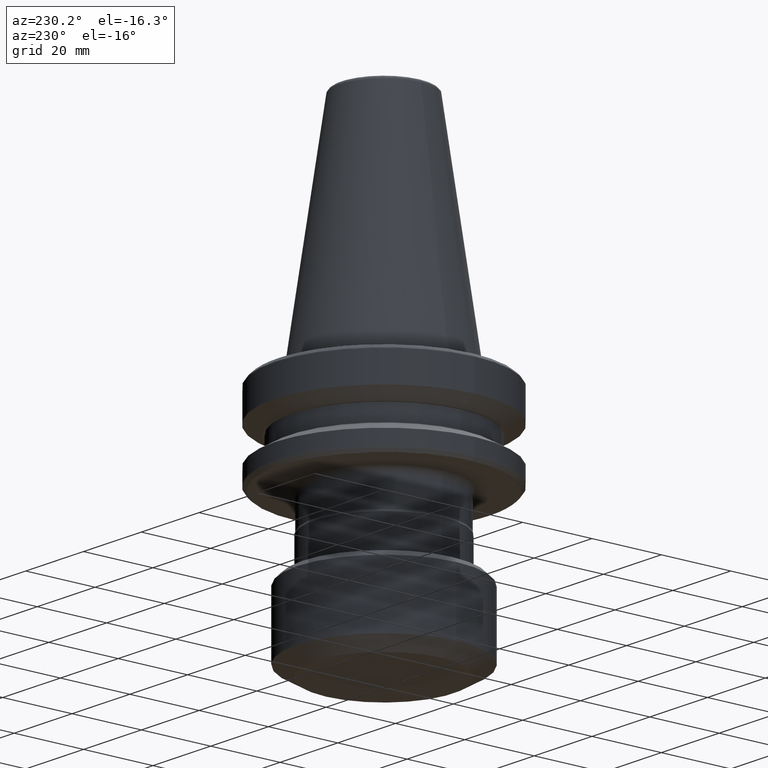
[diagram: clean part render]
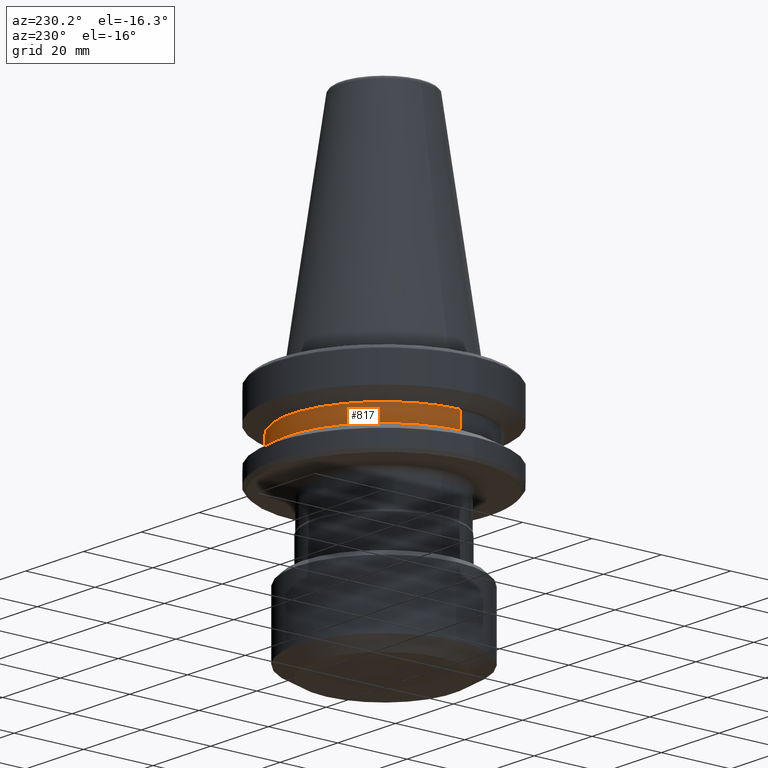
[diagram: same view with one face highlighted and labeled with its STEP entity id]
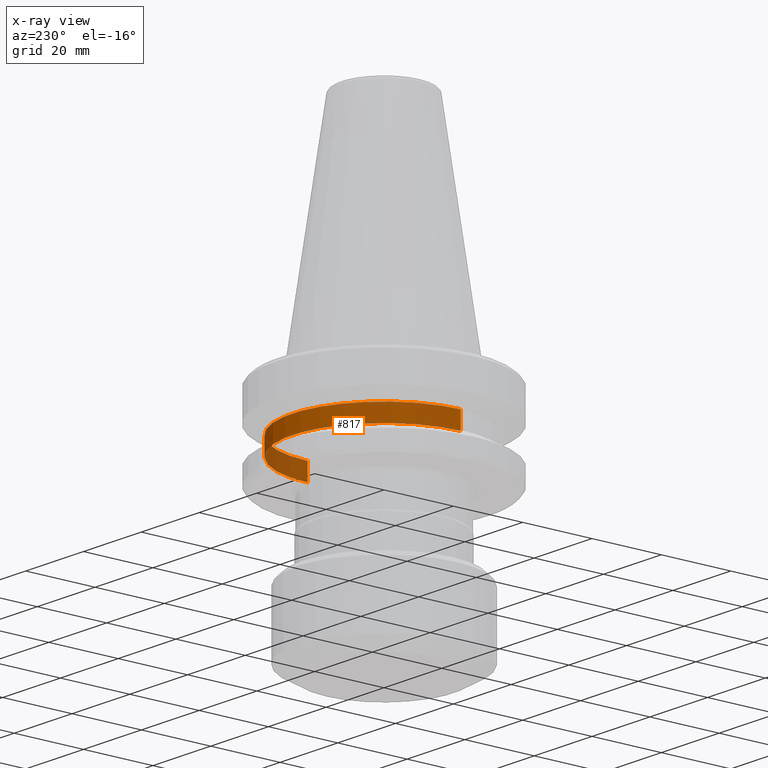
[diagram: x-ray of the same camera — body ghosted, the highlighted face saturated]
A machine part, auxiliary view. The second image highlights one B-rep face of the part: STEP entity #817.
The next image is the same camera in x-ray: the body ghosted, the highlighted face saturated — about 17% of this face is hidden behind the body in this view.
In plain terms, the highlighted cylindrical surface (partial cylindrical patch) has radius 26.5 mm, axis along (-0, -0, 1).
Its self-contained STEP definition (entity closure, byte-faithful):
#12 = DIRECTION ( 'NONE',  ( 1.000000000000000000, 0.0000000000000000000, 0.0000000000000000000 ) ) ;
#30 = EDGE_CURVE ( 'NONE', #1374, #415, #67, .T. ) ;
#66 = EDGE_CURVE ( 'NONE', #415, #366, #212, .T. ) ;
#67 = CIRCLE ( 'NONE', #280, 26.50000000000000000 ) ;
#68 = FACE_OUTER_BOUND ( 'NONE', #1132, .T. ) ;
#93 = DIRECTION ( 'NONE',  ( -0.0000000000000000000, -0.0000000000000000000, 1.000000000000000000 ) ) ;
#105 = CARTESIAN_POINT ( 'NONE',  ( 0.0000000000000000000, 0.0000000000000000000, -19.10000000000000500 ) ) ;
#112 = ORIENTED_EDGE ( 'NONE', *, *, #261, .F. ) ;
#122 = VECTOR ( 'NONE', #537, 1000.000000000000000 ) ;
#212 = LINE ( 'NONE', #228, #1296 ) ;
#221 = VERTEX_POINT ( 'NONE', #510 ) ;
#223 = EDGE_CURVE ( 'NONE', #1374, #221, #1403, .T. ) ;
#228 = CARTESIAN_POINT ( 'NONE',  ( -26.50000000000000000, 3.245314017740485800E-015, 69.75694866325665100 ) ) ;
#261 = EDGE_CURVE ( 'NONE', #221, #366, #1058, .T. ) ;
#280 = AXIS2_PLACEMENT_3D ( 'NONE', #105, #1047, #12 ) ;
#366 = VERTEX_POINT ( 'NONE', #769 ) ;
#415 = VERTEX_POINT ( 'NONE', #858 ) ;
#510 = CARTESIAN_POINT ( 'NONE',  ( 26.50000000000000000, 0.0000000000000000000, -14.10000000000000100 ) ) ;
#533 = CARTESIAN_POINT ( 'NONE',  ( 26.50000000000000000, 0.0000000000000000000, 69.75694866325665100 ) ) ;
#537 = DIRECTION ( 'NONE',  ( -0.0000000000000000000, -0.0000000000000000000, 1.000000000000000000 ) ) ;
#608 = CARTESIAN_POINT ( 'NONE',  ( 0.0000000000000000000, 0.0000000000000000000, -14.10000000000000100 ) ) ;
#611 = DIRECTION ( 'NONE',  ( -0.0000000000000000000, -0.0000000000000000000, 1.000000000000000000 ) ) ;
#614 = DIRECTION ( 'NONE',  ( 1.000000000000000000, 0.0000000000000000000, 0.0000000000000000000 ) ) ;
#717 = ORIENTED_EDGE ( 'NONE', *, *, #66, .T. ) ;
#769 = CARTESIAN_POINT ( 'NONE',  ( -26.50000000000000000, 3.245314017740485800E-015, -14.10000000000000100 ) ) ;
#817 = ADVANCED_FACE ( 'NONE', ( #68 ), #948, .T. ) ;
#858 = CARTESIAN_POINT ( 'NONE',  ( -26.50000000000000000, 3.245314017740485800E-015, -19.10000000000000500 ) ) ;
#948 = CYLINDRICAL_SURFACE ( 'NONE', #1033, 26.50000000000000000 ) ;
#1033 = AXIS2_PLACEMENT_3D ( 'NONE', #1386, #1117, #1365 ) ;
#1042 = ORIENTED_EDGE ( 'NONE', *, *, #223, .F. ) ;
#1047 = DIRECTION ( 'NONE',  ( -0.0000000000000000000, -0.0000000000000000000, 1.000000000000000000 ) ) ;
#1056 = ORIENTED_EDGE ( 'NONE', *, *, #30, .T. ) ;
#1058 = CIRCLE ( 'NONE', #1418, 26.50000000000000000 ) ;
#1117 = DIRECTION ( 'NONE',  ( -0.0000000000000000000, -0.0000000000000000000, 1.000000000000000000 ) ) ;
#1132 = EDGE_LOOP ( 'NONE', ( #1056, #717, #112, #1042 ) ) ;
#1296 = VECTOR ( 'NONE', #93, 1000.000000000000000 ) ;
#1362 = CARTESIAN_POINT ( 'NONE',  ( 26.50000000000000000, 0.0000000000000000000, -19.10000000000000500 ) ) ;
#1365 = DIRECTION ( 'NONE',  ( 1.000000000000000000, 0.0000000000000000000, 0.0000000000000000000 ) ) ;
#1374 = VERTEX_POINT ( 'NONE', #1362 ) ;
#1386 = CARTESIAN_POINT ( 'NONE',  ( 0.0000000000000000000, 0.0000000000000000000, 69.75694866325665100 ) ) ;
#1403 = LINE ( 'NONE', #533, #122 ) ;
#1418 = AXIS2_PLACEMENT_3D ( 'NONE', #608, #611, #614 ) ;